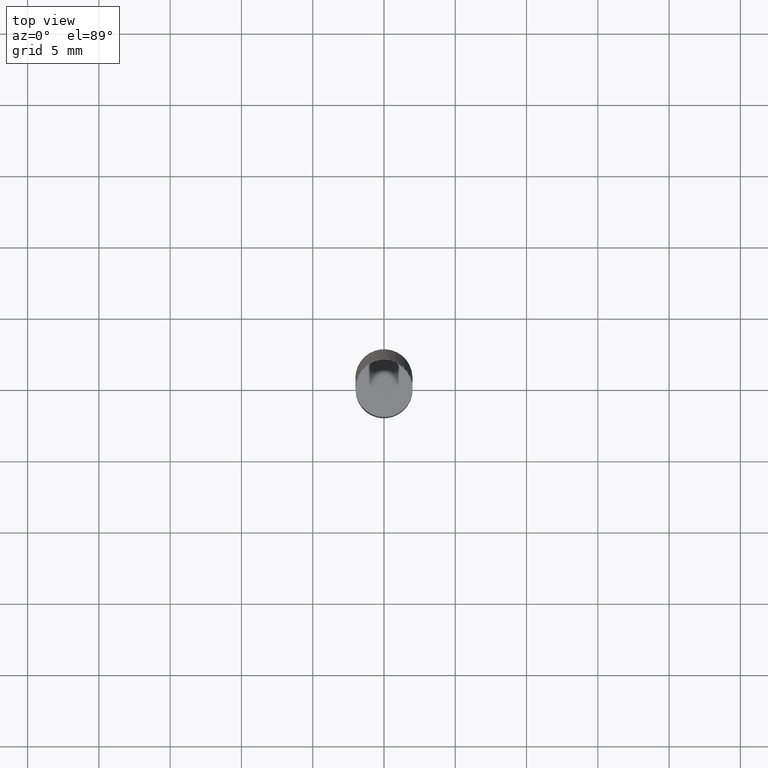
[diagram: clean part render]
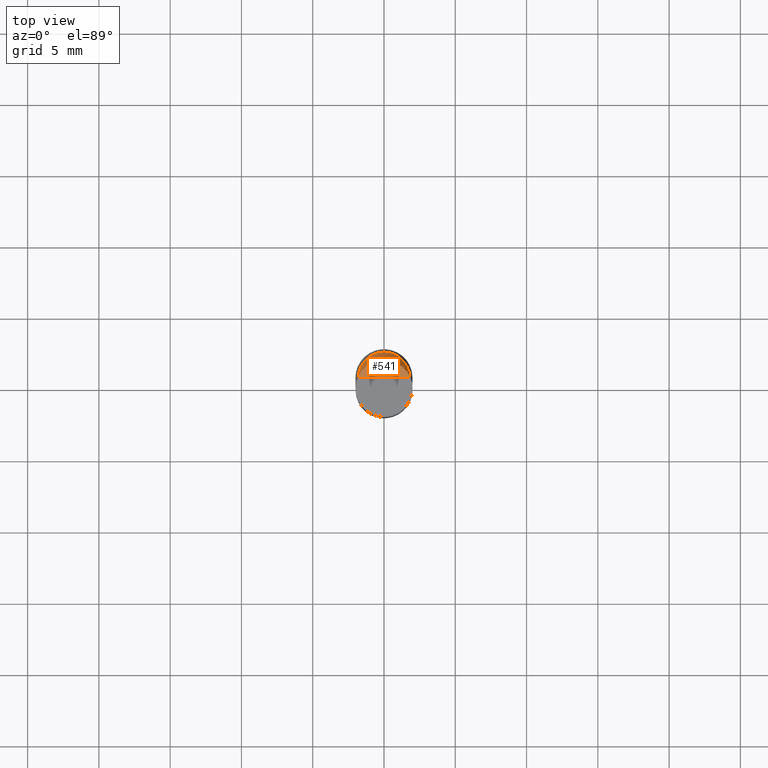
[diagram: same view with one face highlighted and labeled with its STEP entity id]
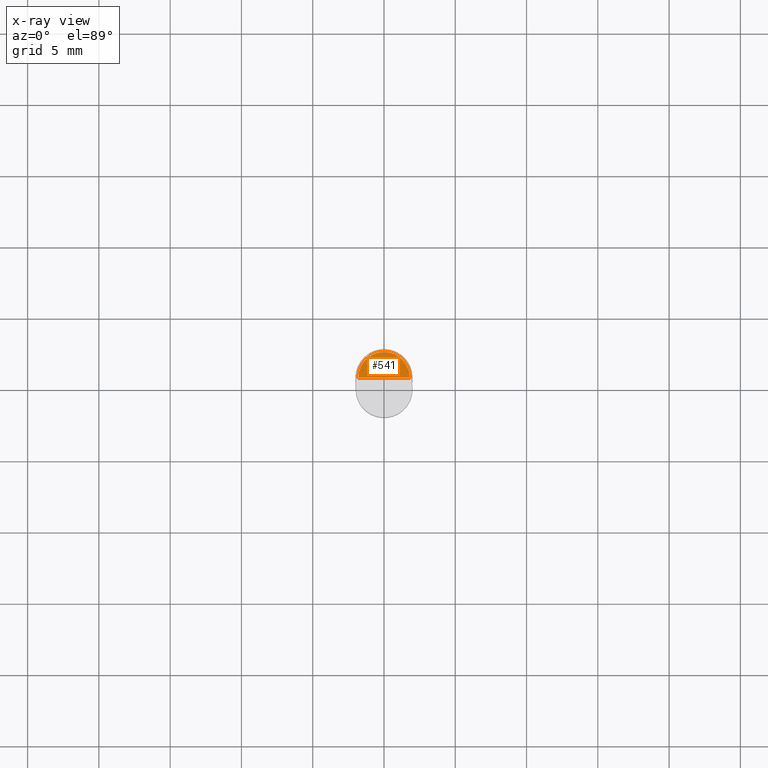
[diagram: x-ray of the same camera — body ghosted, the highlighted face saturated]
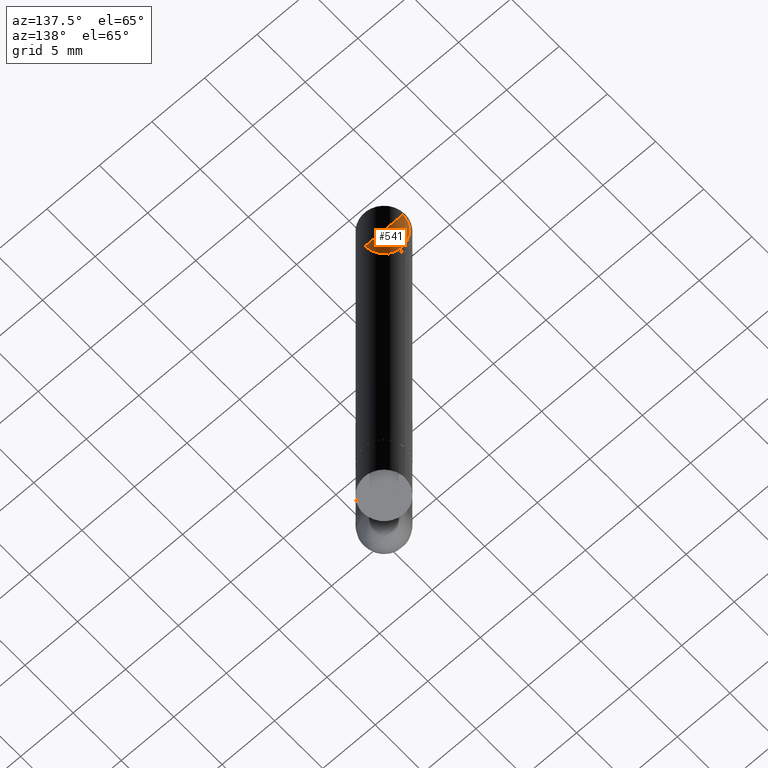
[diagram: same view with one face highlighted and labeled with its STEP entity id]
A machine part, top view. The second image highlights one B-rep face of the part: STEP entity #541.
The next image is the same camera in x-ray: the body ghosted, the highlighted face saturated — about 0% of this face is hidden behind the body in this view.
A second angle (auxiliary view) of the same face is appended — the face is thin or edge-on in the first view.
In plain terms, the highlighted face is a freeform B-spline surface patch.
Its self-contained STEP definition (entity closure, byte-faithful):
#322=CARTESIAN_POINT('',(1.8,0.0,39.0));
#323=CARTESIAN_POINT('',(1.8,1.8,39.0));
#324=CARTESIAN_POINT('',(0.0,1.8,39.0));
#325=CARTESIAN_POINT('',(-1.8,1.8,39.0));
#326=CARTESIAN_POINT('',(-1.8,0.0,39.0));
#327=CARTESIAN_POINT('',(0.0,0.0,39.0));
#526=(
BOUNDED_SURFACE()
B_SPLINE_SURFACE(1,2,(
(#322,#323,#324,#325,#326),
(#327,#327,#327,#327,#327)
), .UNSPECIFIED.,.F.,.F.,.F.)
B_SPLINE_SURFACE_WITH_KNOTS((2,2),(3,2,3),(
0.0,1.0),(
0.0,0.5,1.0), .UNSPECIFIED.)
GEOMETRIC_REPRESENTATION_ITEM()
RATIONAL_B_SPLINE_SURFACE(((1.0,0.707106781187,1.0,0.707106781187,1.0),
(1.0,0.707106781187,1.0,0.707106781187,1.0)
))
REPRESENTATION_ITEM('')
SURFACE()
);
#527=(
BOUNDED_CURVE()
B_SPLINE_CURVE(2,(#326,#325,#324,#323,#322),.UNSPECIFIED.,.F.,.F.)
B_SPLINE_CURVE_WITH_KNOTS((3,2,3),
(0.0,0.5,1.0),.UNSPECIFIED.)
CURVE()
GEOMETRIC_REPRESENTATION_ITEM()
RATIONAL_B_SPLINE_CURVE((1.0,0.707106781187,1.0,0.707106781187,1.0))
REPRESENTATION_ITEM('')
);
#528=(
BOUNDED_CURVE()
B_SPLINE_CURVE(1,(#322,#327),.UNSPECIFIED.,.F.,.F.)
B_SPLINE_CURVE_WITH_KNOTS((2,2),
(0.0,1.0),.UNSPECIFIED.)
CURVE()
GEOMETRIC_REPRESENTATION_ITEM()
RATIONAL_B_SPLINE_CURVE((1.0,1.0))
REPRESENTATION_ITEM('')
);
#529=(
BOUNDED_CURVE()
B_SPLINE_CURVE(1,(#327,#326),.UNSPECIFIED.,.F.,.F.)
B_SPLINE_CURVE_WITH_KNOTS((2,2),
(0.0,1.0),.UNSPECIFIED.)
CURVE()
GEOMETRIC_REPRESENTATION_ITEM()
RATIONAL_B_SPLINE_CURVE((1.0,1.0))
REPRESENTATION_ITEM('')
);
#530=VERTEX_POINT('',#322);
#531=VERTEX_POINT('',#326);
#532=VERTEX_POINT('',#327);
#533=EDGE_CURVE('',#531,#530,#527,.T.);
#534=EDGE_CURVE('',#530,#532,#528,.T.);
#535=EDGE_CURVE('',#532,#531,#529,.T.);
#536=ORIENTED_EDGE('',*,*,#533,.T.);
#537=ORIENTED_EDGE('',*,*,#534,.T.);
#538=ORIENTED_EDGE('',*,*,#535,.T.);
#539=EDGE_LOOP('',(#536,#537,#538));
#540=FACE_OUTER_BOUND('',#539,.T.);
#541=ADVANCED_FACE('',(#540),#526,.T.);